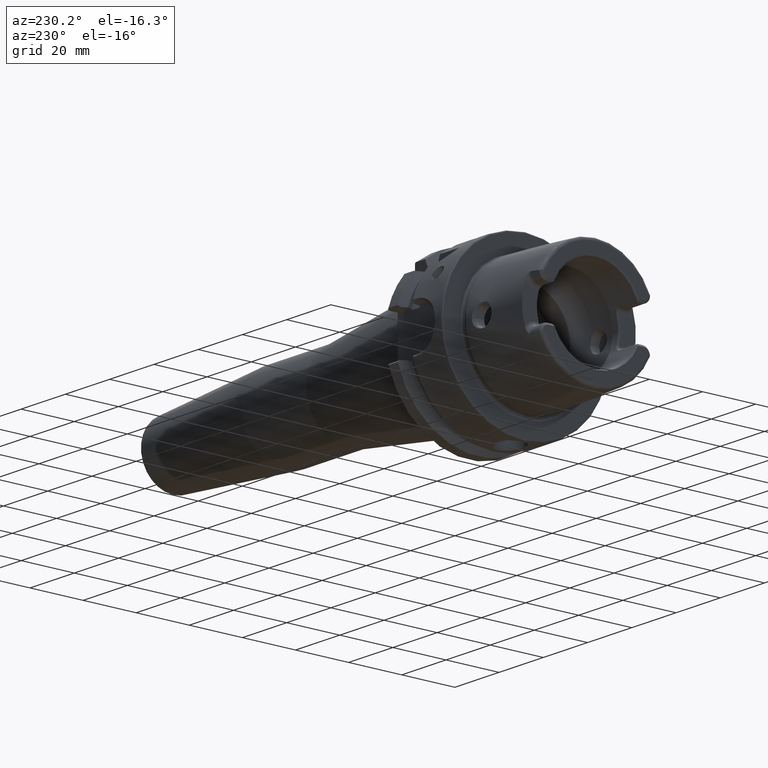
[diagram: clean part render]
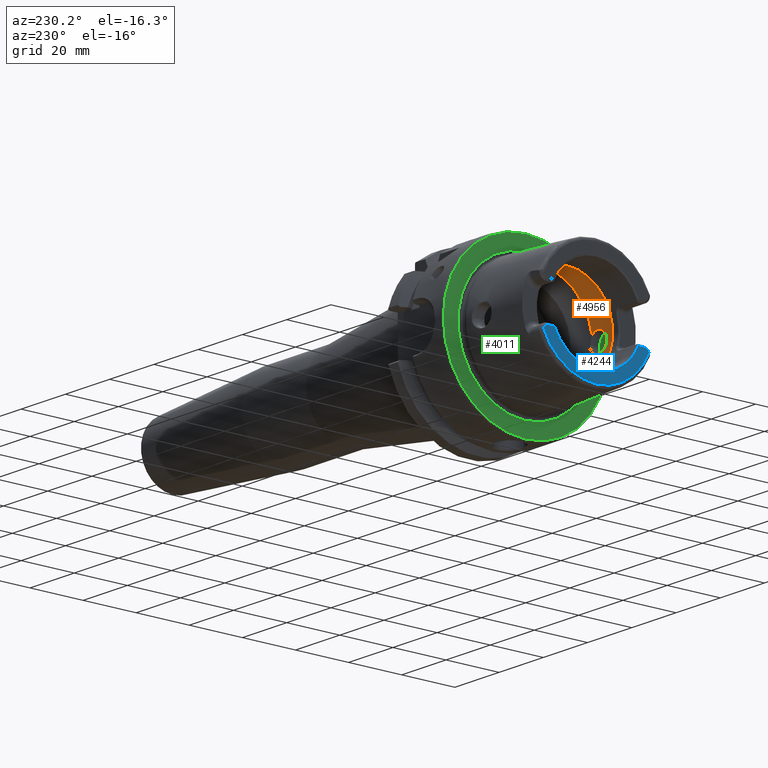
[diagram: same view with three faces highlighted in distinct colors, each labeled with its STEP entity id]
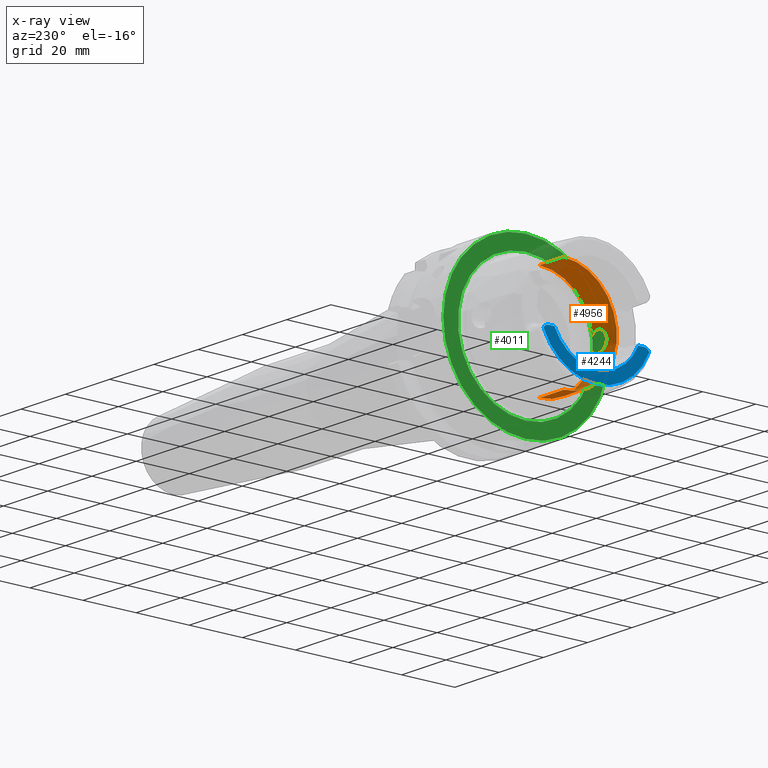
[diagram: x-ray of the same camera — body ghosted, the three highlighted faces saturated]
A machine part, auxiliary view with three faces highlighted in distinct colors.
The next image is the same camera in x-ray (body ghosted, the three faces saturated) — at least one of them is partly hidden behind the body in this view.
Their STEP definitions:

[orange] entity #4956 — the highlighted cylindrical surface (partial cylindrical patch) has radius 20 mm, axis along (1, 0, 0).
#1767=CARTESIAN_POINT('',(-1.275E1,-1.99999999E1,0.E0));
#1768=CARTESIAN_POINT('',(-1.275E1,-1.99999999E1,-2.521013685529E-1));
#1769=CARTESIAN_POINT('',(-1.270027737553E1,-1.999058859895E1,
-7.456987717208E-1));
#1770=CARTESIAN_POINT('',(-1.247854943360E1,-1.995021036686E1,
-1.467027006737E0));
#1771=CARTESIAN_POINT('',(-1.211813851842E1,-1.988977616026E1,
-2.127402050047E0));
#1772=CARTESIAN_POINT('',(-1.163726074685E1,-1.981912729168E1,
-2.701011039733E0));
#1773=CARTESIAN_POINT('',(-1.104729243051E1,-1.974836703805E1,
-3.171513422847E0));
#1774=CARTESIAN_POINT('',(-1.038040066941E1,-1.968954201551E1,
-3.513815501315E0));
#1775=CARTESIAN_POINT('',(-9.647982002938E0,-1.965127008206E1,
-3.719177177137E0));
#1776=CARTESIAN_POINT('',(-8.900887994509E0,-1.964074836162E1,
-3.773595275991E0));
#1777=CARTESIAN_POINT('',(-8.152676684205E0,-1.965899391744E1,
-3.678552226110E0));
#1778=CARTESIAN_POINT('',(-7.437021749637E0,-1.970321634602E1,
-3.437832059909E0));
#1779=CARTESIAN_POINT('',(-6.766283038869E0,-1.976880152585E1,
-3.043174584824E0));
#1780=CARTESIAN_POINT('',(-6.412053249105E0,-1.981436872154E1,
-2.724306669752E0));
#1781=CARTESIAN_POINT('',(-6.25E0,-1.983683432405E1,-2.549509756796E0));
#1783=CARTESIAN_POINT('',(-6.25E0,-1.983683432405E1,2.549509756796E0));
#1784=CARTESIAN_POINT('',(-6.412615640680E0,-1.981429075664E1,
2.724913287093E0));
#1785=CARTESIAN_POINT('',(-6.767922365933E0,-1.976858507722E1,
3.044642999749E0));
#1786=CARTESIAN_POINT('',(-7.442004779313E0,-1.970279837136E1,
3.440215689278E0));
#1787=CARTESIAN_POINT('',(-8.157184233515E0,-1.965882665966E1,
3.679417749825E0));
#1788=CARTESIAN_POINT('',(-8.903475487327E0,-1.964074202939E1,
3.773631892091E0));
#1789=CARTESIAN_POINT('',(-9.650936081239E0,-1.965137398590E1,
3.718629939811E0));
#1790=CARTESIAN_POINT('',(-1.038170311499E1,-1.968964959960E1,
3.513217405331E0));
#1791=CARTESIAN_POINT('',(-1.104809586369E1,-1.974845673600E1,
3.170933053688E0));
#1792=CARTESIAN_POINT('',(-1.163703767481E1,-1.981910322290E1,
2.701157287313E0));
#1793=CARTESIAN_POINT('',(-1.211800725292E1,-1.988975364888E1,2.127612236E0));
#1794=CARTESIAN_POINT('',(-1.247839689009E1,-1.995018418162E1,
1.467360516410E0));
#1795=CARTESIAN_POINT('',(-1.270021633428E1,-1.999057683853E1,
7.460576467196E-1));
#1796=CARTESIAN_POINT('',(-1.275E1,-1.99999999E1,2.522499085260E-1));
#1797=CARTESIAN_POINT('',(-1.275E1,-1.99999999E1,0.E0));
#1799=CARTESIAN_POINT('',(-6.25E0,0.E0,0.E0));
#1800=DIRECTION('',(1.E0,0.E0,0.E0));
#1801=DIRECTION('',(0.E0,0.E0,1.E0));
#1802=AXIS2_PLACEMENT_3D('',#1799,#1800,#1801);
#1804=DIRECTION('',(-1.E0,0.E0,0.E0));
#1805=VECTOR('',#1804,1.101397465395E1);
#1806=CARTESIAN_POINT('',(-6.25E0,0.E0,1.99999999E1));
#1807=LINE('',#1806,#1805);
#1808=DIRECTION('',(-1.E0,0.E0,0.E0));
#1809=VECTOR('',#1808,1.101397465395E1);
#1810=CARTESIAN_POINT('',(-6.25E0,0.E0,-1.99999999E1));
#1811=LINE('',#1810,#1809);
#1812=CARTESIAN_POINT('',(-6.25E0,0.E0,0.E0));
#1813=DIRECTION('',(1.E0,0.E0,0.E0));
#1814=DIRECTION('',(0.E0,-9.918417211620E-1,-1.274754884772E-1));
#1815=AXIS2_PLACEMENT_3D('',#1812,#1813,#1814);
#1847=CARTESIAN_POINT('',(-1.726397465395E1,0.E0,0.E0));
#1848=DIRECTION('',(-1.E0,0.E0,0.E0));
#1849=DIRECTION('',(0.E0,0.E0,-1.E0));
#1850=AXIS2_PLACEMENT_3D('',#1847,#1848,#1849);
#2551=CARTESIAN_POINT('',(-1.726397465395E1,0.E0,-1.99999999E1));
#2552=CARTESIAN_POINT('',(-1.726397465395E1,0.E0,1.99999999E1));
#2553=VERTEX_POINT('',#2551);
#2554=VERTEX_POINT('',#2552);
#2563=CARTESIAN_POINT('',(-6.25E0,0.E0,-1.99999999E1));
#2564=VERTEX_POINT('',#2563);
#2565=CARTESIAN_POINT('',(-6.25E0,0.E0,1.99999999E1));
#2566=VERTEX_POINT('',#2565);
#2857=VERTEX_POINT('',#1767);
#2858=VERTEX_POINT('',#1781);
#2859=VERTEX_POINT('',#1783);
#4939=CARTESIAN_POINT('',(0.E0,0.E0,0.E0));
#4940=DIRECTION('',(1.E0,0.E0,0.E0));
#4941=DIRECTION('',(0.E0,0.E0,1.E0));
#4942=AXIS2_PLACEMENT_3D('',#4939,#4940,#4941);
#4943=CYLINDRICAL_SURFACE('',#4942,1.99999999E1);
#4944=ORIENTED_EDGE('',*,*,#4894,.F.);
#4945=ORIENTED_EDGE('',*,*,#4838,.F.);
#4947=ORIENTED_EDGE('',*,*,#4946,.F.);
#4948=ORIENTED_EDGE('',*,*,#4932,.T.);
#4950=ORIENTED_EDGE('',*,*,#4949,.F.);
#4951=ORIENTED_EDGE('',*,*,#4928,.F.);
#4953=ORIENTED_EDGE('',*,*,#4952,.F.);
#4954=EDGE_LOOP('',(#4944,#4945,#4947,#4948,#4950,#4951,#4953));
#4955=FACE_OUTER_BOUND('',#4954,.F.);
#4956=ADVANCED_FACE('',(#4955),#4943,.F.);
#1782=B_SPLINE_CURVE_WITH_KNOTS('',3,(#1767,#1768,#1769,#1770,#1771,#1772,#1773,
#1774,#1775,#1776,#1777,#1778,#1779,#1780,#1781),.UNSPECIFIED.,.F.,.F.,(4,1,1,1,
1,1,1,1,1,1,1,1,4),(0.E0,8.333333333333E-2,1.666666666667E-1,2.5E-1,
3.333333333333E-1,4.166666666667E-1,5.E-1,5.833333333333E-1,6.666666666667E-1,
7.5E-1,8.333333333333E-1,9.166666666667E-1,1.E0),.UNSPECIFIED.);
#1798=B_SPLINE_CURVE_WITH_KNOTS('',3,(#1783,#1784,#1785,#1786,#1787,#1788,#1789,
#1790,#1791,#1792,#1793,#1794,#1795,#1796,#1797),.UNSPECIFIED.,.F.,.F.,(4,1,1,1,
1,1,1,1,1,1,1,1,4),(0.E0,8.333333333333E-2,1.666666666667E-1,2.5E-1,
3.333333333333E-1,4.166666666667E-1,5.E-1,5.833333333333E-1,6.666666666667E-1,
7.5E-1,8.333333333333E-1,9.166666666667E-1,1.E0),.UNSPECIFIED.);
#1803=CIRCLE('',#1802,1.99999999E1);
#1816=CIRCLE('',#1815,1.99999999E1);
#1851=CIRCLE('',#1850,1.99999999E1);
#4838=EDGE_CURVE('',#2859,#2857,#1798,.T.);
#4894=EDGE_CURVE('',#2857,#2858,#1782,.T.);
#4928=EDGE_CURVE('',#2564,#2553,#1811,.T.);
#4932=EDGE_CURVE('',#2566,#2554,#1807,.T.);
#4946=EDGE_CURVE('',#2566,#2859,#1803,.T.);
#4949=EDGE_CURVE('',#2553,#2554,#1851,.T.);
#4952=EDGE_CURVE('',#2858,#2564,#1816,.T.);

[blue] entity #4244 — the highlighted planar face has unit normal (1, 0, 0).
#88=CARTESIAN_POINT('',(-3.2E1,0.E0,0.E0));
#89=DIRECTION('',(-1.E0,0.E0,0.E0));
#90=DIRECTION('',(0.E0,9.224287428258E-1,-3.861673399044E-1));
#91=AXIS2_PLACEMENT_3D('',#88,#89,#90);
#1268=DIRECTION('',(0.E0,1.E0,0.E0));
#1269=VECTOR('',#1268,2.213010809741E0);
#1270=CARTESIAN_POINT('',(-3.2E1,1.577698919026E1,-7.07E0));
#1271=LINE('',#1270,#1269);
#1272=DIRECTION('',(0.E0,-1.E0,0.E0));
#1273=VECTOR('',#1272,2.213010809741E0);
#1274=CARTESIAN_POINT('',(-3.2E1,-1.577698919026E1,-7.07E0));
#1275=LINE('',#1274,#1273);
#1276=CARTESIAN_POINT('',(-3.2E1,-1.799E1,-9.15E0));
#1277=DIRECTION('',(1.E0,0.E0,0.E0));
#1278=DIRECTION('',(0.E0,0.E0,1.E0));
#1279=AXIS2_PLACEMENT_3D('',#1276,#1277,#1278);
#1281=CARTESIAN_POINT('',(-3.2E1,1.799E1,-9.15E0));
#1282=DIRECTION('',(-1.E0,0.E0,0.E0));
#1283=DIRECTION('',(0.E0,0.E0,1.E0));
#1284=AXIS2_PLACEMENT_3D('',#1281,#1282,#1283);
#1652=CARTESIAN_POINT('',(-3.2E1,0.E0,-3.446132268436E-13));
#1653=DIRECTION('',(1.E0,0.E0,0.E0));
#1654=DIRECTION('',(0.E0,-9.125620712653E-1,-4.089382179351E-1));
#1655=AXIS2_PLACEMENT_3D('',#1652,#1653,#1654);
#2801=CARTESIAN_POINT('',(-3.2E1,-1.799E1,-7.07E0));
#2803=VERTEX_POINT('',#2801);
#2804=CARTESIAN_POINT('',(-3.2E1,-1.577698919026E1,-7.07E0));
#2805=VERTEX_POINT('',#2804);
#2806=CARTESIAN_POINT('',(-3.2E1,-1.990238974402E1,-8.331974653830E0));
#2807=VERTEX_POINT('',#2806);
#2819=CARTESIAN_POINT('',(-3.2E1,1.799E1,-7.07E0));
#2821=VERTEX_POINT('',#2819);
#2832=CARTESIAN_POINT('',(-3.2E1,1.577698919026E1,-7.07E0));
#2833=VERTEX_POINT('',#2832);
#2834=CARTESIAN_POINT('',(-3.2E1,1.990238974402E1,-8.331974653830E0));
#2835=VERTEX_POINT('',#2834);
#4230=CARTESIAN_POINT('',(-3.2E1,0.E0,0.E0));
#4231=DIRECTION('',(1.E0,0.E0,0.E0));
#4232=DIRECTION('',(0.E0,0.E0,1.E0));
#4233=AXIS2_PLACEMENT_3D('',#4230,#4231,#4232);
#4234=PLANE('',#4233);
#4235=ORIENTED_EDGE('',*,*,#3108,.F.);
#4237=ORIENTED_EDGE('',*,*,#4236,.F.);
#4238=ORIENTED_EDGE('',*,*,#4199,.T.);
#4239=ORIENTED_EDGE('',*,*,#4188,.T.);
#4240=ORIENTED_EDGE('',*,*,#3067,.F.);
#4241=ORIENTED_EDGE('',*,*,#3088,.F.);
#4242=EDGE_LOOP('',(#4235,#4237,#4238,#4239,#4240,#4241));
#4243=FACE_OUTER_BOUND('',#4242,.F.);
#4244=ADVANCED_FACE('',(#4243),#4234,.F.);
#92=CIRCLE('',#91,2.157607283902E1);
#1280=CIRCLE('',#1279,2.08E0);
#1285=CIRCLE('',#1284,2.08E0);
#1656=CIRCLE('',#1655,1.728867513459E1);
#3067=EDGE_CURVE('',#2835,#2807,#92,.T.);
#3088=EDGE_CURVE('',#2821,#2835,#1285,.T.);
#3108=EDGE_CURVE('',#2833,#2821,#1271,.T.);
#4188=EDGE_CURVE('',#2803,#2807,#1280,.T.);
#4199=EDGE_CURVE('',#2805,#2803,#1275,.T.);
#4236=EDGE_CURVE('',#2805,#2833,#1656,.T.);

[green] entity #4011 — the highlighted planar face has unit normal (1, 0, 0).
#1011=CARTESIAN_POINT('',(0.E0,0.E0,0.E0));
#1012=DIRECTION('',(1.E0,0.E0,0.E0));
#1013=DIRECTION('',(0.E0,0.E0,-1.E0));
#1014=AXIS2_PLACEMENT_3D('',#1011,#1012,#1013);
#1016=CARTESIAN_POINT('',(0.E0,0.E0,0.E0));
#1017=DIRECTION('',(1.E0,0.E0,0.E0));
#1018=DIRECTION('',(0.E0,0.E0,1.E0));
#1019=AXIS2_PLACEMENT_3D('',#1016,#1017,#1018);
#1021=CARTESIAN_POINT('',(0.E0,0.E0,0.E0));
#1022=DIRECTION('',(-1.E0,0.E0,0.E0));
#1023=DIRECTION('',(0.E0,0.E0,1.E0));
#1024=AXIS2_PLACEMENT_3D('',#1021,#1022,#1023);
#1026=CARTESIAN_POINT('',(0.E0,0.E0,0.E0));
#1027=DIRECTION('',(-1.E0,0.E0,0.E0));
#1028=DIRECTION('',(0.E0,0.E0,-1.E0));
#1029=AXIS2_PLACEMENT_3D('',#1026,#1027,#1028);
#2591=CARTESIAN_POINT('',(0.E0,0.E0,-2.54204E1));
#2592=CARTESIAN_POINT('',(0.E0,0.E0,2.54204E1));
#2593=VERTEX_POINT('',#2591);
#2594=VERTEX_POINT('',#2592);
#2920=CARTESIAN_POINT('',(0.E0,0.E0,3.1E1));
#2921=CARTESIAN_POINT('',(0.E0,1.138921523207E-14,-3.1E1));
#2922=VERTEX_POINT('',#2920);
#2923=VERTEX_POINT('',#2921);
#3995=CARTESIAN_POINT('',(0.E0,0.E0,0.E0));
#3996=DIRECTION('',(1.E0,0.E0,0.E0));
#3997=DIRECTION('',(0.E0,0.E0,1.E0));
#3998=AXIS2_PLACEMENT_3D('',#3995,#3996,#3997);
#3999=PLANE('',#3998);
#4000=ORIENTED_EDGE('',*,*,#3985,.F.);
#4002=ORIENTED_EDGE('',*,*,#4001,.F.);
#4003=EDGE_LOOP('',(#4000,#4002));
#4004=FACE_OUTER_BOUND('',#4003,.F.);
#4006=ORIENTED_EDGE('',*,*,#4005,.F.);
#4008=ORIENTED_EDGE('',*,*,#4007,.F.);
#4009=EDGE_LOOP('',(#4006,#4008));
#4010=FACE_BOUND('',#4009,.F.);
#4011=ADVANCED_FACE('',(#4004,#4010),#3999,.F.);
#1015=CIRCLE('',#1014,2.54204E1);
#1020=CIRCLE('',#1019,2.54204E1);
#1025=CIRCLE('',#1024,3.1E1);
#1030=CIRCLE('',#1029,3.1E1);
#3985=EDGE_CURVE('',#2922,#2923,#1025,.T.);
#4001=EDGE_CURVE('',#2923,#2922,#1030,.T.);
#4005=EDGE_CURVE('',#2593,#2594,#1015,.T.);
#4007=EDGE_CURVE('',#2594,#2593,#1020,.T.);